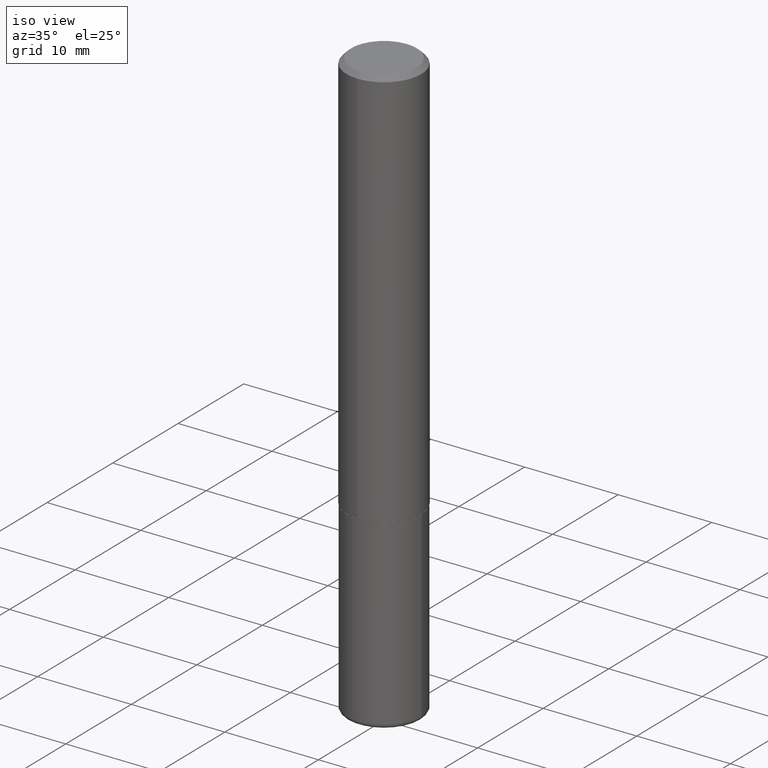
[diagram: clean part render]
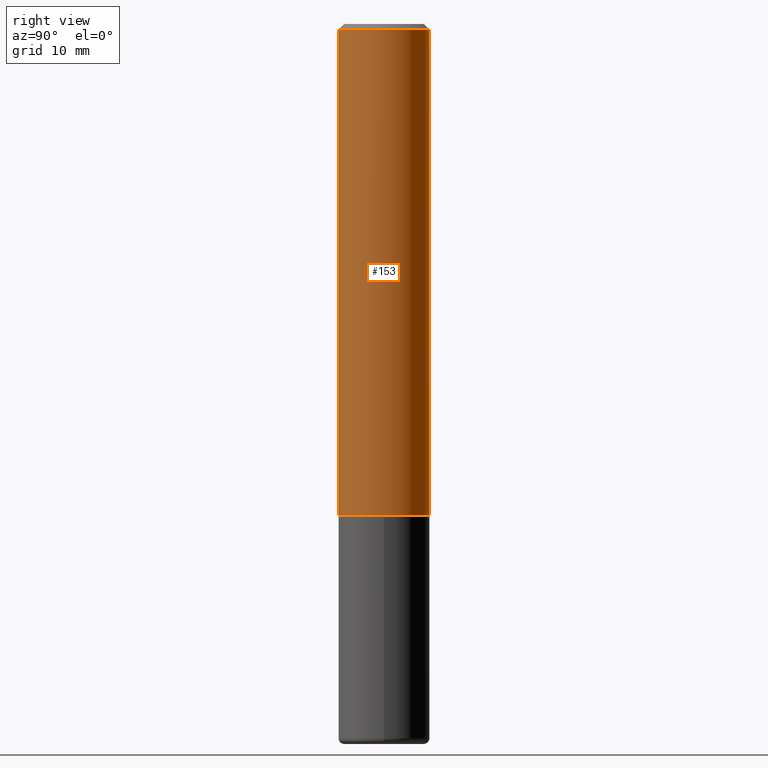
[diagram: tour spotlight — one face highlighted and labeled with its STEP entity id]
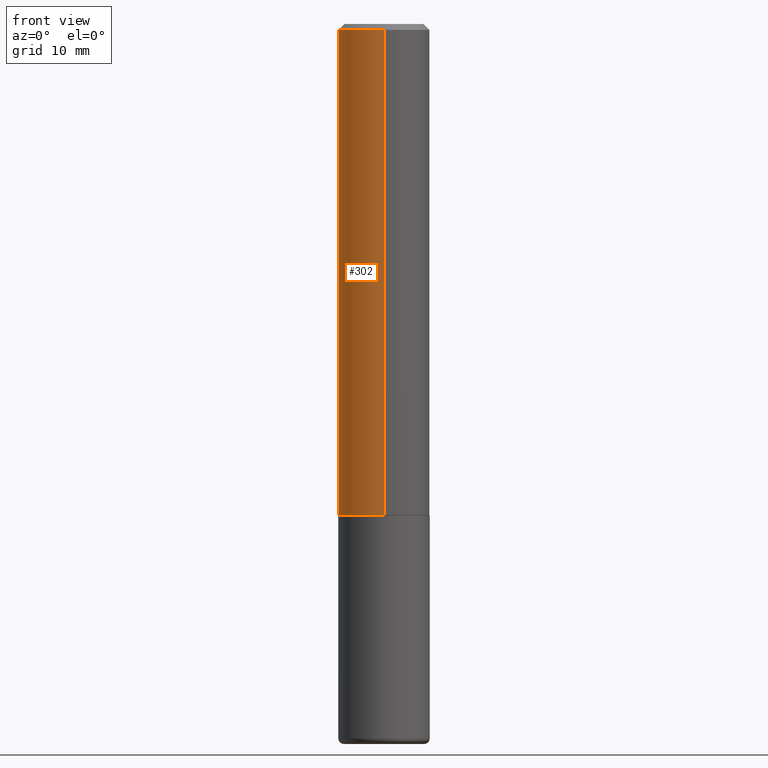
[diagram: tour spotlight — one face highlighted and labeled with its STEP entity id]
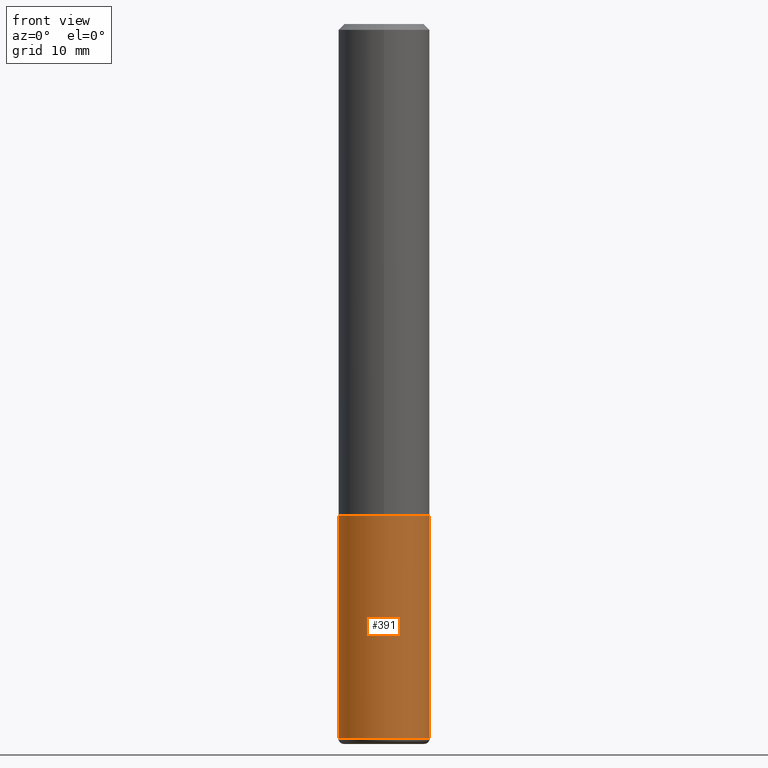
[diagram: tour spotlight — one face highlighted and labeled with its STEP entity id]
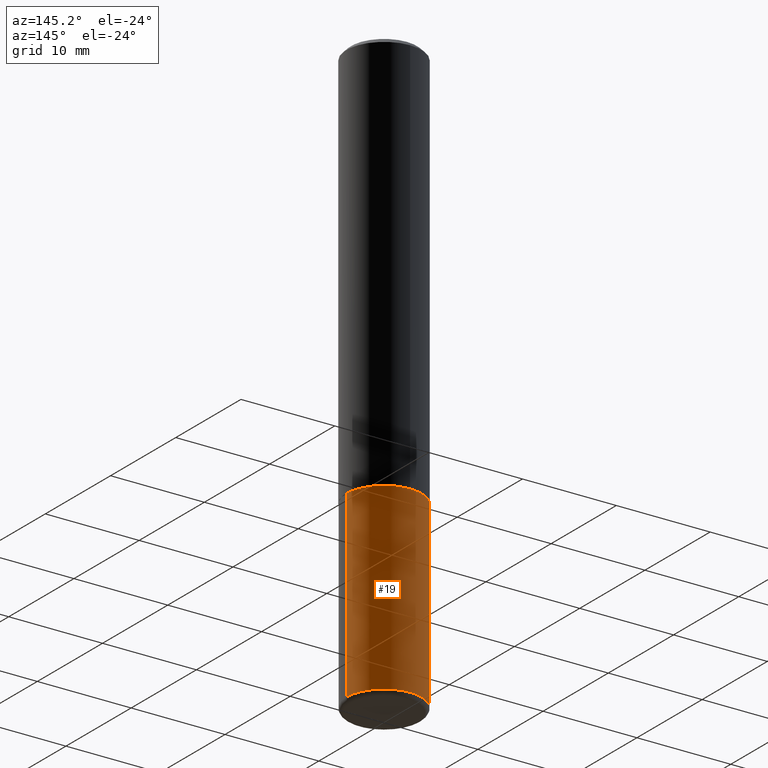
[diagram: tour spotlight — one face highlighted and labeled with its STEP entity id]
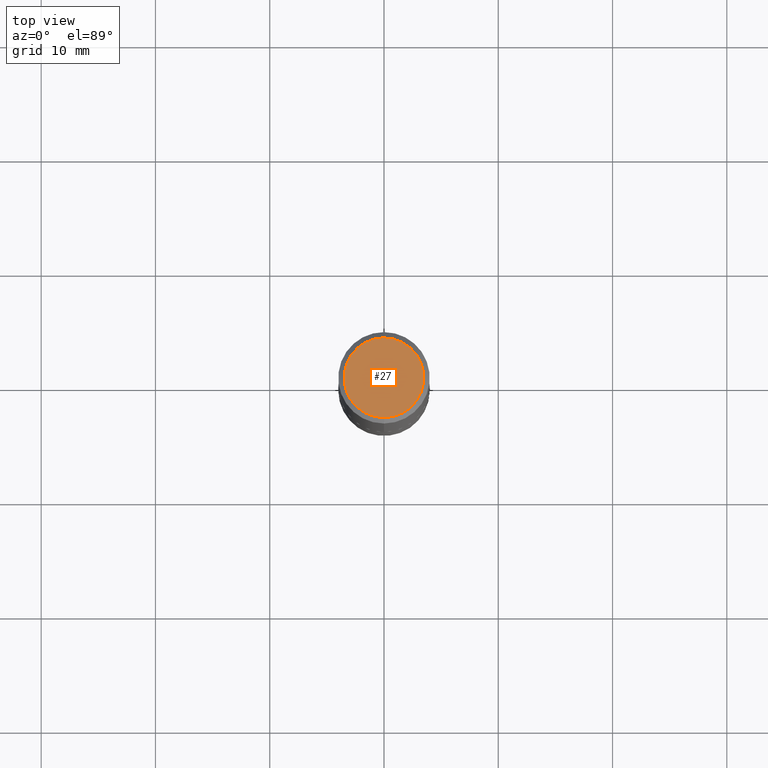
[diagram: tour spotlight — one face highlighted and labeled with its STEP entity id]
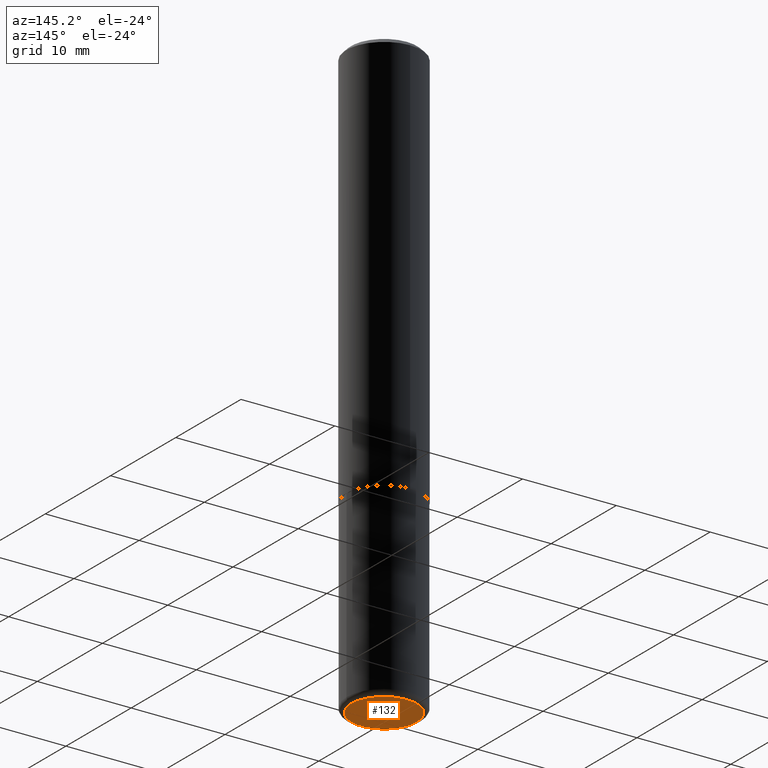
[diagram: tour spotlight — one face highlighted and labeled with its STEP entity id]
A machine part: a face-by-face anatomy tour. The part has 14 B-rep faces; the first image is the clean iso view, then the 6 largest visible faces are spotlighted one at a time (largest first), each with its STEP entity span.

Face 1 — right view, entity #153. In plain terms, the highlighted cylindrical surface (partial cylindrical patch) has radius 4.0005 mm, axis along (-0, 0, 1).
Definition (entity closure, byte-faithful):
#11 = CARTESIAN_POINT ( 'NONE',  ( -1.080528434649015779E-15, -0.1575000000000000844, -0.01999999999999948347 ) ) ;
#37 = EDGE_CURVE ( 'NONE', #217, #187, #298, .T. ) ;
#43 = VECTOR ( 'NONE', #316, 39.37007874015748143 ) ;
#49 = LINE ( 'NONE', #226, #235 ) ;
#52 = ORIENTED_EDGE ( 'NONE', *, *, #37, .T. ) ;
#77 = ORIENTED_EDGE ( 'NONE', *, *, #349, .F. ) ;
#82 = CARTESIAN_POINT ( 'NONE',  ( -1.099816621735546854E-15, -0.1575000000000061351, -1.691899999999999737 ) ) ;
#83 = ORIENTED_EDGE ( 'NONE', *, *, #247, .F. ) ;
#91 = DIRECTION ( 'NONE',  ( -6.982962677686265133E-15, -1.000000000000000000, 3.489440200954778195E-15 ) ) ;
#107 = CARTESIAN_POINT ( 'NONE',  ( 4.139900170349041117E-29, -5.903783875995391742E-15, -1.691900000000000404 ) ) ;
#112 = ORIENTED_EDGE ( 'NONE', *, *, #378, .T. ) ;
#116 = DIRECTION ( 'NONE',  ( -2.446894125154584110E-29, 3.489440200954778984E-15, 1.000000000000000000 ) ) ;
#124 = LINE ( 'NONE', #258, #43 ) ;
#133 = FACE_OUTER_BOUND ( 'NONE', #377, .T. ) ;
#153 = ADVANCED_FACE ( 'NONE', ( #133 ), #158, .T. ) ;
#158 = CYLINDRICAL_SURFACE ( 'NONE', #268, 0.1575000000000001399 ) ;
#163 = VERTEX_POINT ( 'NONE', #343 ) ;
#168 = DIRECTION ( 'NONE',  ( -2.446894125154584110E-29, 3.489440200954778984E-15, 1.000000000000000000 ) ) ;
#187 = VERTEX_POINT ( 'NONE', #397 ) ;
#201 = DIRECTION ( 'NONE',  ( -2.446894125154584110E-29, 3.489440200954778984E-15, 1.000000000000000000 ) ) ;
#217 = VERTEX_POINT ( 'NONE', #82 ) ;
#226 = CARTESIAN_POINT ( 'NONE',  ( -1.099816621735587677E-15, -0.1575000000000001399, 5.495868316503780705E-16 ) ) ;
#231 = VERTEX_POINT ( 'NONE', #11 ) ;
#235 = VECTOR ( 'NONE', #373, 39.37007874015748143 ) ;
#247 = EDGE_CURVE ( 'NONE', #231, #163, #292, .T. ) ;
#255 = DIRECTION ( 'NONE',  ( -6.982962677686265922E-15, -1.000000000000000000, 3.469013325287948560E-15 ) ) ;
#258 = CARTESIAN_POINT ( 'NONE',  ( 1.119104808822158392E-15, 0.1575000000000001399, -5.495868316503780705E-16 ) ) ;
#268 = AXIS2_PLACEMENT_3D ( 'NONE', #279, #168, #91 ) ;
#278 = CARTESIAN_POINT ( 'NONE',  ( 4.893788250309175717E-31, -6.978880401909569159E-17, -0.02000000000000003511 ) ) ;
#279 = CARTESIAN_POINT ( 'NONE',  ( 0.000000000000000000, 0.000000000000000000, 0.000000000000000000 ) ) ;
#287 = AXIS2_PLACEMENT_3D ( 'NONE', #107, #201, #255 ) ;
#292 = CIRCLE ( 'NONE', #370, 0.1575000000000000289 ) ;
#298 = CIRCLE ( 'NONE', #287, 0.1575000000000002232 ) ;
#316 = DIRECTION ( 'NONE',  ( -2.446894125154584390E-29, 3.489440200954778984E-15, 1.000000000000000000 ) ) ;
#343 = CARTESIAN_POINT ( 'NONE',  ( 1.099816621735587480E-15, 0.1574999999999999456, -0.02000000000000058328 ) ) ;
#349 = EDGE_CURVE ( 'NONE', #217, #231, #49, .T. ) ;
#368 = DIRECTION ( 'NONE',  ( -6.982962677686264344E-15, -1.000000000000000000, 3.496114991891764787E-15 ) ) ;
#370 = AXIS2_PLACEMENT_3D ( 'NONE', #278, #116, #368 ) ;
#373 = DIRECTION ( 'NONE',  ( -2.446894125154584390E-29, 3.489440200954778984E-15, 1.000000000000000000 ) ) ;
#377 = EDGE_LOOP ( 'NONE', ( #52, #112, #83, #77 ) ) ;
#378 = EDGE_CURVE ( 'NONE', #187, #163, #124, .T. ) ;
#397 = CARTESIAN_POINT ( 'NONE',  ( 1.119104808822179494E-15, 0.1574999999999943112, -1.691900000000000848 ) ) ;

Face 2 — front view, entity #302. In plain terms, the highlighted cylindrical surface (partial cylindrical patch) has radius 4.0005 mm, axis along (-0, 0, 1).
Definition (entity closure, byte-faithful):
#11 = CARTESIAN_POINT ( 'NONE',  ( -1.080528434649015779E-15, -0.1575000000000000844, -0.01999999999999948347 ) ) ;
#22 = CARTESIAN_POINT ( 'NONE',  ( 0.000000000000000000, 0.000000000000000000, 0.000000000000000000 ) ) ;
#25 = ORIENTED_EDGE ( 'NONE', *, *, #173, .F. ) ;
#43 = VECTOR ( 'NONE', #316, 39.37007874015748143 ) ;
#49 = LINE ( 'NONE', #226, #235 ) ;
#70 = ORIENTED_EDGE ( 'NONE', *, *, #211, .T. ) ;
#80 = CARTESIAN_POINT ( 'NONE',  ( 4.139900170349041117E-29, -5.903783875995391742E-15, -1.691900000000000404 ) ) ;
#82 = CARTESIAN_POINT ( 'NONE',  ( -1.099816621735546854E-15, -0.1575000000000061351, -1.691899999999999737 ) ) ;
#94 = EDGE_LOOP ( 'NONE', ( #223, #70, #119, #25 ) ) ;
#102 = CIRCLE ( 'NONE', #150, 0.1575000000000002232 ) ;
#119 = ORIENTED_EDGE ( 'NONE', *, *, #349, .T. ) ;
#124 = LINE ( 'NONE', #258, #43 ) ;
#134 = CIRCLE ( 'NONE', #191, 0.1575000000000000289 ) ;
#150 = AXIS2_PLACEMENT_3D ( 'NONE', #80, #250, #314 ) ;
#163 = VERTEX_POINT ( 'NONE', #343 ) ;
#173 = EDGE_CURVE ( 'NONE', #163, #231, #134, .T. ) ;
#186 = CARTESIAN_POINT ( 'NONE',  ( 4.893788250309175717E-31, -6.978880401909569159E-17, -0.02000000000000003511 ) ) ;
#187 = VERTEX_POINT ( 'NONE', #397 ) ;
#188 = DIRECTION ( 'NONE',  ( -2.446894125154584110E-29, 3.489440200954778984E-15, 1.000000000000000000 ) ) ;
#191 = AXIS2_PLACEMENT_3D ( 'NONE', #186, #188, #306 ) ;
#200 = DIRECTION ( 'NONE',  ( -2.446894125154584110E-29, 3.489440200954778984E-15, 1.000000000000000000 ) ) ;
#211 = EDGE_CURVE ( 'NONE', #187, #217, #102, .T. ) ;
#217 = VERTEX_POINT ( 'NONE', #82 ) ;
#223 = ORIENTED_EDGE ( 'NONE', *, *, #378, .F. ) ;
#226 = CARTESIAN_POINT ( 'NONE',  ( -1.099816621735587677E-15, -0.1575000000000001399, 5.495868316503780705E-16 ) ) ;
#231 = VERTEX_POINT ( 'NONE', #11 ) ;
#235 = VECTOR ( 'NONE', #373, 39.37007874015748143 ) ;
#250 = DIRECTION ( 'NONE',  ( -2.446894125154584110E-29, 3.489440200954778984E-15, 1.000000000000000000 ) ) ;
#257 = CYLINDRICAL_SURFACE ( 'NONE', #303, 0.1575000000000001399 ) ;
#258 = CARTESIAN_POINT ( 'NONE',  ( 1.119104808822158392E-15, 0.1575000000000001399, -5.495868316503780705E-16 ) ) ;
#271 = FACE_OUTER_BOUND ( 'NONE', #94, .T. ) ;
#302 = ADVANCED_FACE ( 'NONE', ( #271 ), #257, .T. ) ;
#303 = AXIS2_PLACEMENT_3D ( 'NONE', #22, #200, #371 ) ;
#306 = DIRECTION ( 'NONE',  ( -6.982962677686264344E-15, -1.000000000000000000, 3.496114991891764787E-15 ) ) ;
#314 = DIRECTION ( 'NONE',  ( -6.982962677686265922E-15, -1.000000000000000000, 3.469013325287948560E-15 ) ) ;
#316 = DIRECTION ( 'NONE',  ( -2.446894125154584390E-29, 3.489440200954778984E-15, 1.000000000000000000 ) ) ;
#343 = CARTESIAN_POINT ( 'NONE',  ( 1.099816621735587480E-15, 0.1574999999999999456, -0.02000000000000058328 ) ) ;
#349 = EDGE_CURVE ( 'NONE', #217, #231, #49, .T. ) ;
#371 = DIRECTION ( 'NONE',  ( -6.982962677686265133E-15, -1.000000000000000000, 3.489440200954778195E-15 ) ) ;
#373 = DIRECTION ( 'NONE',  ( -2.446894125154584390E-29, 3.489440200954778984E-15, 1.000000000000000000 ) ) ;
#378 = EDGE_CURVE ( 'NONE', #187, #163, #124, .T. ) ;
#397 = CARTESIAN_POINT ( 'NONE',  ( 1.119104808822179494E-15, 0.1574999999999943112, -1.691900000000000848 ) ) ;

Face 3 — front view, entity #391. In plain terms, the highlighted cylindrical surface (partial cylindrical patch) has radius 4.0005 mm, axis along (-0, 0, 1).
Definition (entity closure, byte-faithful):
#4 = AXIS2_PLACEMENT_3D ( 'NONE', #233, #121, #325 ) ;
#21 = DIRECTION ( 'NONE',  ( -2.445468806185136597E-29, 3.491481338843145583E-15, 1.000000000000000000 ) ) ;
#42 = CIRCLE ( 'NONE', #4, 0.1575000000000000011 ) ;
#46 = FACE_OUTER_BOUND ( 'NONE', #307, .T. ) ;
#56 = CARTESIAN_POINT ( 'NONE',  ( 0.1575000000000000011, -7.010545380263150133E-15, -1.692900000000000293 ) ) ;
#89 = CARTESIAN_POINT ( 'NONE',  ( -0.1575000000000000011, -6.131829061620345009E-15, -1.692900000000000293 ) ) ;
#92 = CARTESIAN_POINT ( 'NONE',  ( 0.000000000000000000, 0.000000000000000000, 0.000000000000000000 ) ) ;
#98 = CARTESIAN_POINT ( 'NONE',  ( -0.1575000000000000011, 1.119104808822157801E-15, -7.747322767151475583E-30 ) ) ;
#117 = DIRECTION ( 'NONE',  ( -2.445468806185136597E-29, 3.491481338843145583E-15, 1.000000000000000000 ) ) ;
#121 = DIRECTION ( 'NONE',  ( -2.445468806185136597E-29, 3.491481338843145583E-15, 1.000000000000000000 ) ) ;
#122 = EDGE_CURVE ( 'NONE', #339, #152, #129, .T. ) ;
#129 = CIRCLE ( 'NONE', #239, 0.1575000000000000011 ) ;
#139 = EDGE_CURVE ( 'NONE', #376, #177, #42, .T. ) ;
#152 = VERTEX_POINT ( 'NONE', #56 ) ;
#156 = LINE ( 'NONE', #334, #413 ) ;
#164 = CARTESIAN_POINT ( 'NONE',  ( -0.1575000000000000289, -7.472034173535286547E-15, -2.460599999999999898 ) ) ;
#177 = VERTEX_POINT ( 'NONE', #253 ) ;
#180 = EDGE_CURVE ( 'NONE', #177, #152, #156, .T. ) ;
#192 = CYLINDRICAL_SURFACE ( 'NONE', #295, 0.1575000000000000011 ) ;
#224 = DIRECTION ( 'NONE',  ( 1.000000000000000000, -6.982962677686268288E-15, 0.000000000000000000 ) ) ;
#230 = DIRECTION ( 'NONE',  ( 1.000000000000000000, -6.982962677686265922E-15, 4.876176775795935232E-29 ) ) ;
#233 = CARTESIAN_POINT ( 'NONE',  ( 6.017320544499146897E-29, -8.591138982357444151E-15, -2.460599999999999898 ) ) ;
#239 = AXIS2_PLACEMENT_3D ( 'NONE', #403, #117, #224 ) ;
#243 = ORIENTED_EDGE ( 'NONE', *, *, #291, .F. ) ;
#253 = CARTESIAN_POINT ( 'NONE',  ( 0.1575000000000000289, -9.690955604093032420E-15, -2.460599999999999898 ) ) ;
#267 = DIRECTION ( 'NONE',  ( -2.445468806185136877E-29, 3.491481338843145188E-15, 1.000000000000000000 ) ) ;
#291 = EDGE_CURVE ( 'NONE', #376, #339, #409, .T. ) ;
#294 = ORIENTED_EDGE ( 'NONE', *, *, #139, .T. ) ;
#295 = AXIS2_PLACEMENT_3D ( 'NONE', #92, #21, #230 ) ;
#307 = EDGE_LOOP ( 'NONE', ( #243, #294, #410, #367 ) ) ;
#310 = DIRECTION ( 'NONE',  ( -2.445468806185136877E-29, 3.491481338843145188E-15, 1.000000000000000000 ) ) ;
#325 = DIRECTION ( 'NONE',  ( 1.000000000000000000, -6.982962677686268288E-15, 0.000000000000000000 ) ) ;
#334 = CARTESIAN_POINT ( 'NONE',  ( 0.1575000000000000011, -1.099816621735586889E-15, 7.679978421878598033E-30 ) ) ;
#339 = VERTEX_POINT ( 'NONE', #89 ) ;
#367 = ORIENTED_EDGE ( 'NONE', *, *, #122, .F. ) ;
#376 = VERTEX_POINT ( 'NONE', #164 ) ;
#381 = VECTOR ( 'NONE', #267, 39.37007874015748143 ) ;
#391 = ADVANCED_FACE ( 'NONE', ( #46 ), #192, .T. ) ;
#403 = CARTESIAN_POINT ( 'NONE',  ( 4.139934141990818918E-29, -5.910728758527562653E-15, -1.692900000000000293 ) ) ;
#409 = LINE ( 'NONE', #98, #381 ) ;
#410 = ORIENTED_EDGE ( 'NONE', *, *, #180, .T. ) ;
#413 = VECTOR ( 'NONE', #310, 39.37007874015748143 ) ;

Face 4 — auxiliary view, entity #19. In plain terms, the highlighted cylindrical surface (partial cylindrical patch) has radius 4.0005 mm, axis along (-0, 0, 1).
Definition (entity closure, byte-faithful):
#8 = EDGE_LOOP ( 'NONE', ( #148, #277, #213, #281 ) ) ;
#19 = ADVANCED_FACE ( 'NONE', ( #179 ), #240, .T. ) ;
#34 = AXIS2_PLACEMENT_3D ( 'NONE', #275, #174, #266 ) ;
#47 = CARTESIAN_POINT ( 'NONE',  ( 4.139934141990818918E-29, -5.910728758527562653E-15, -1.692900000000000293 ) ) ;
#56 = CARTESIAN_POINT ( 'NONE',  ( 0.1575000000000000011, -7.010545380263150133E-15, -1.692900000000000293 ) ) ;
#88 = EDGE_CURVE ( 'NONE', #177, #376, #118, .T. ) ;
#89 = CARTESIAN_POINT ( 'NONE',  ( -0.1575000000000000011, -6.131829061620345009E-15, -1.692900000000000293 ) ) ;
#95 = EDGE_CURVE ( 'NONE', #152, #339, #274, .T. ) ;
#98 = CARTESIAN_POINT ( 'NONE',  ( -0.1575000000000000011, 1.119104808822157801E-15, -7.747322767151475583E-30 ) ) ;
#118 = CIRCLE ( 'NONE', #375, 0.1575000000000000011 ) ;
#148 = ORIENTED_EDGE ( 'NONE', *, *, #88, .T. ) ;
#152 = VERTEX_POINT ( 'NONE', #56 ) ;
#156 = LINE ( 'NONE', #334, #413 ) ;
#164 = CARTESIAN_POINT ( 'NONE',  ( -0.1575000000000000289, -7.472034173535286547E-15, -2.460599999999999898 ) ) ;
#170 = DIRECTION ( 'NONE',  ( -2.445468806185136597E-29, 3.491481338843145583E-15, 1.000000000000000000 ) ) ;
#174 = DIRECTION ( 'NONE',  ( -2.445468806185136597E-29, 3.491481338843145583E-15, 1.000000000000000000 ) ) ;
#177 = VERTEX_POINT ( 'NONE', #253 ) ;
#179 = FACE_OUTER_BOUND ( 'NONE', #8, .T. ) ;
#180 = EDGE_CURVE ( 'NONE', #177, #152, #156, .T. ) ;
#213 = ORIENTED_EDGE ( 'NONE', *, *, #95, .F. ) ;
#228 = CARTESIAN_POINT ( 'NONE',  ( 6.017320544499146897E-29, -8.591138982357444151E-15, -2.460599999999999898 ) ) ;
#240 = CYLINDRICAL_SURFACE ( 'NONE', #34, 0.1575000000000000011 ) ;
#253 = CARTESIAN_POINT ( 'NONE',  ( 0.1575000000000000289, -9.690955604093032420E-15, -2.460599999999999898 ) ) ;
#266 = DIRECTION ( 'NONE',  ( 1.000000000000000000, -6.982962677686265922E-15, 4.876176775795935232E-29 ) ) ;
#267 = DIRECTION ( 'NONE',  ( -2.445468806185136877E-29, 3.491481338843145188E-15, 1.000000000000000000 ) ) ;
#274 = CIRCLE ( 'NONE', #335, 0.1575000000000000011 ) ;
#275 = CARTESIAN_POINT ( 'NONE',  ( 0.000000000000000000, 0.000000000000000000, 0.000000000000000000 ) ) ;
#277 = ORIENTED_EDGE ( 'NONE', *, *, #291, .T. ) ;
#281 = ORIENTED_EDGE ( 'NONE', *, *, #180, .F. ) ;
#286 = DIRECTION ( 'NONE',  ( 1.000000000000000000, -6.982962677686268288E-15, 0.000000000000000000 ) ) ;
#291 = EDGE_CURVE ( 'NONE', #376, #339, #409, .T. ) ;
#310 = DIRECTION ( 'NONE',  ( -2.445468806185136877E-29, 3.491481338843145188E-15, 1.000000000000000000 ) ) ;
#323 = DIRECTION ( 'NONE',  ( -2.445468806185136597E-29, 3.491481338843145583E-15, 1.000000000000000000 ) ) ;
#334 = CARTESIAN_POINT ( 'NONE',  ( 0.1575000000000000011, -1.099816621735586889E-15, 7.679978421878598033E-30 ) ) ;
#335 = AXIS2_PLACEMENT_3D ( 'NONE', #47, #170, #372 ) ;
#339 = VERTEX_POINT ( 'NONE', #89 ) ;
#372 = DIRECTION ( 'NONE',  ( 1.000000000000000000, -6.982962677686268288E-15, 0.000000000000000000 ) ) ;
#375 = AXIS2_PLACEMENT_3D ( 'NONE', #228, #323, #286 ) ;
#376 = VERTEX_POINT ( 'NONE', #164 ) ;
#381 = VECTOR ( 'NONE', #267, 39.37007874015748143 ) ;
#409 = LINE ( 'NONE', #98, #381 ) ;
#413 = VECTOR ( 'NONE', #310, 39.37007874015748143 ) ;

Face 5 — top view, entity #27. In plain terms, the highlighted planar face has unit normal (0, -0, -1).
Definition (entity closure, byte-faithful):
#17 = DIRECTION ( 'NONE',  ( 6.982962677686265922E-15, 1.000000000000000000, -3.489440200954778984E-15 ) ) ;
#20 = DIRECTION ( 'NONE',  ( -2.446894125154584110E-29, 3.489440200954778984E-15, 1.000000000000000000 ) ) ;
#27 = ADVANCED_FACE ( 'NONE', ( #394 ), #222, .F. ) ;
#54 = VERTEX_POINT ( 'NONE', #55 ) ;
#55 = CARTESIAN_POINT ( 'NONE',  ( 1.029986994958724774E-15, 0.1375000000000000944, -5.398378589523385849E-16 ) ) ;
#60 = EDGE_CURVE ( 'NONE', #105, #54, #184, .T. ) ;
#63 = EDGE_LOOP ( 'NONE', ( #293, #259 ) ) ;
#67 = EDGE_CURVE ( 'NONE', #54, #105, #215, .T. ) ;
#72 = AXIS2_PLACEMENT_3D ( 'NONE', #411, #260, #157 ) ;
#96 = AXIS2_PLACEMENT_3D ( 'NONE', #350, #20, #347 ) ;
#105 = VERTEX_POINT ( 'NONE', #284 ) ;
#149 = DIRECTION ( 'NONE',  ( 2.446894125154583830E-29, -3.489440200954778984E-15, -1.000000000000000000 ) ) ;
#157 = DIRECTION ( 'NONE',  ( -6.982962677686265922E-15, -1.000000000000000000, 3.489440200954779378E-15 ) ) ;
#171 = AXIS2_PLACEMENT_3D ( 'NONE', #341, #149, #17 ) ;
#184 = CIRCLE ( 'NONE', #96, 0.1375000000000000944 ) ;
#215 = CIRCLE ( 'NONE', #72, 0.1375000000000000944 ) ;
#222 = PLANE ( 'NONE',  #171 ) ;
#259 = ORIENTED_EDGE ( 'NONE', *, *, #60, .T. ) ;
#260 = DIRECTION ( 'NONE',  ( -2.446894125154584110E-29, 3.489440200954778984E-15, 1.000000000000000000 ) ) ;
#284 = CARTESIAN_POINT ( 'NONE',  ( -1.011923454671301040E-15, -0.1375000000000000944, 4.197581963102262963E-16 ) ) ;
#293 = ORIENTED_EDGE ( 'NONE', *, *, #67, .T. ) ;
#341 = CARTESIAN_POINT ( 'NONE',  ( 9.601573681818622643E-16, 0.1375000000000000944, -5.098179432918105990E-16 ) ) ;
#347 = DIRECTION ( 'NONE',  ( -6.982962677686265922E-15, -1.000000000000000000, 3.489440200954779378E-15 ) ) ;
#350 = CARTESIAN_POINT ( 'NONE',  ( 1.469111105347644946E-45, -2.095054010702372216E-31, -6.003983132105615665E-17 ) ) ;
#394 = FACE_OUTER_BOUND ( 'NONE', #63, .T. ) ;
#411 = CARTESIAN_POINT ( 'NONE',  ( 1.469111105347644946E-45, -2.095054010702372216E-31, -6.003983132105615665E-17 ) ) ;

Face 6 — auxiliary view, entity #132. In plain terms, the highlighted planar face has unit normal (0, -0, -1).
Definition (entity closure, byte-faithful):
#2 = CARTESIAN_POINT ( 'NONE',  ( -0.1378000000000000058, -7.576413724195261400E-15, -2.480300000000000171 ) ) ;
#9 = EDGE_LOOP ( 'NONE', ( #354, #48 ) ) ;
#18 = VERTEX_POINT ( 'NONE', #2 ) ;
#33 = EDGE_CURVE ( 'NONE', #18, #189, #229, .T. ) ;
#48 = ORIENTED_EDGE ( 'NONE', *, *, #33, .F. ) ;
#50 = AXIS2_PLACEMENT_3D ( 'NONE', #390, #220, #244 ) ;
#65 = CIRCLE ( 'NONE', #357, 0.1378000000000000058 ) ;
#106 = CARTESIAN_POINT ( 'NONE',  ( 0.1378000000000000058, -9.622173421717822812E-15, -2.480300000000000171 ) ) ;
#108 = AXIS2_PLACEMENT_3D ( 'NONE', #408, #232, #319 ) ;
#113 = DIRECTION ( 'NONE',  ( 1.000000000000000000, -6.982962677686265922E-15, 0.000000000000000000 ) ) ;
#132 = ADVANCED_FACE ( 'NONE', ( #194 ), #326, .T. ) ;
#162 = EDGE_CURVE ( 'NONE', #189, #18, #65, .T. ) ;
#166 = CARTESIAN_POINT ( 'NONE',  ( 6.065496279980994755E-29, -8.659921164732655335E-15, -2.480300000000000171 ) ) ;
#189 = VERTEX_POINT ( 'NONE', #106 ) ;
#194 = FACE_OUTER_BOUND ( 'NONE', #9, .T. ) ;
#220 = DIRECTION ( 'NONE',  ( -2.445468806185136597E-29, 3.491481338843145583E-15, 1.000000000000000000 ) ) ;
#229 = CIRCLE ( 'NONE', #50, 0.1378000000000000058 ) ;
#232 = DIRECTION ( 'NONE',  ( 2.438088387897960049E-29, -3.491481338843145188E-15, -1.000000000000000000 ) ) ;
#244 = DIRECTION ( 'NONE',  ( 1.000000000000000000, -6.982962677686265922E-15, 0.000000000000000000 ) ) ;
#319 = DIRECTION ( 'NONE',  ( -1.000000000000000000, 6.982962677686265922E-15, -4.876176775795935793E-29 ) ) ;
#326 = PLANE ( 'NONE',  #108 ) ;
#354 = ORIENTED_EDGE ( 'NONE', *, *, #162, .F. ) ;
#357 = AXIS2_PLACEMENT_3D ( 'NONE', #166, #401, #113 ) ;
#390 = CARTESIAN_POINT ( 'NONE',  ( 6.065496279980994755E-29, -8.659921164732655335E-15, -2.480300000000000171 ) ) ;
#401 = DIRECTION ( 'NONE',  ( -2.445468806185136597E-29, 3.491481338843145583E-15, 1.000000000000000000 ) ) ;
#408 = CARTESIAN_POINT ( 'NONE',  ( 6.065496279980994755E-29, -8.659921164732655335E-15, -2.480300000000000171 ) ) ;